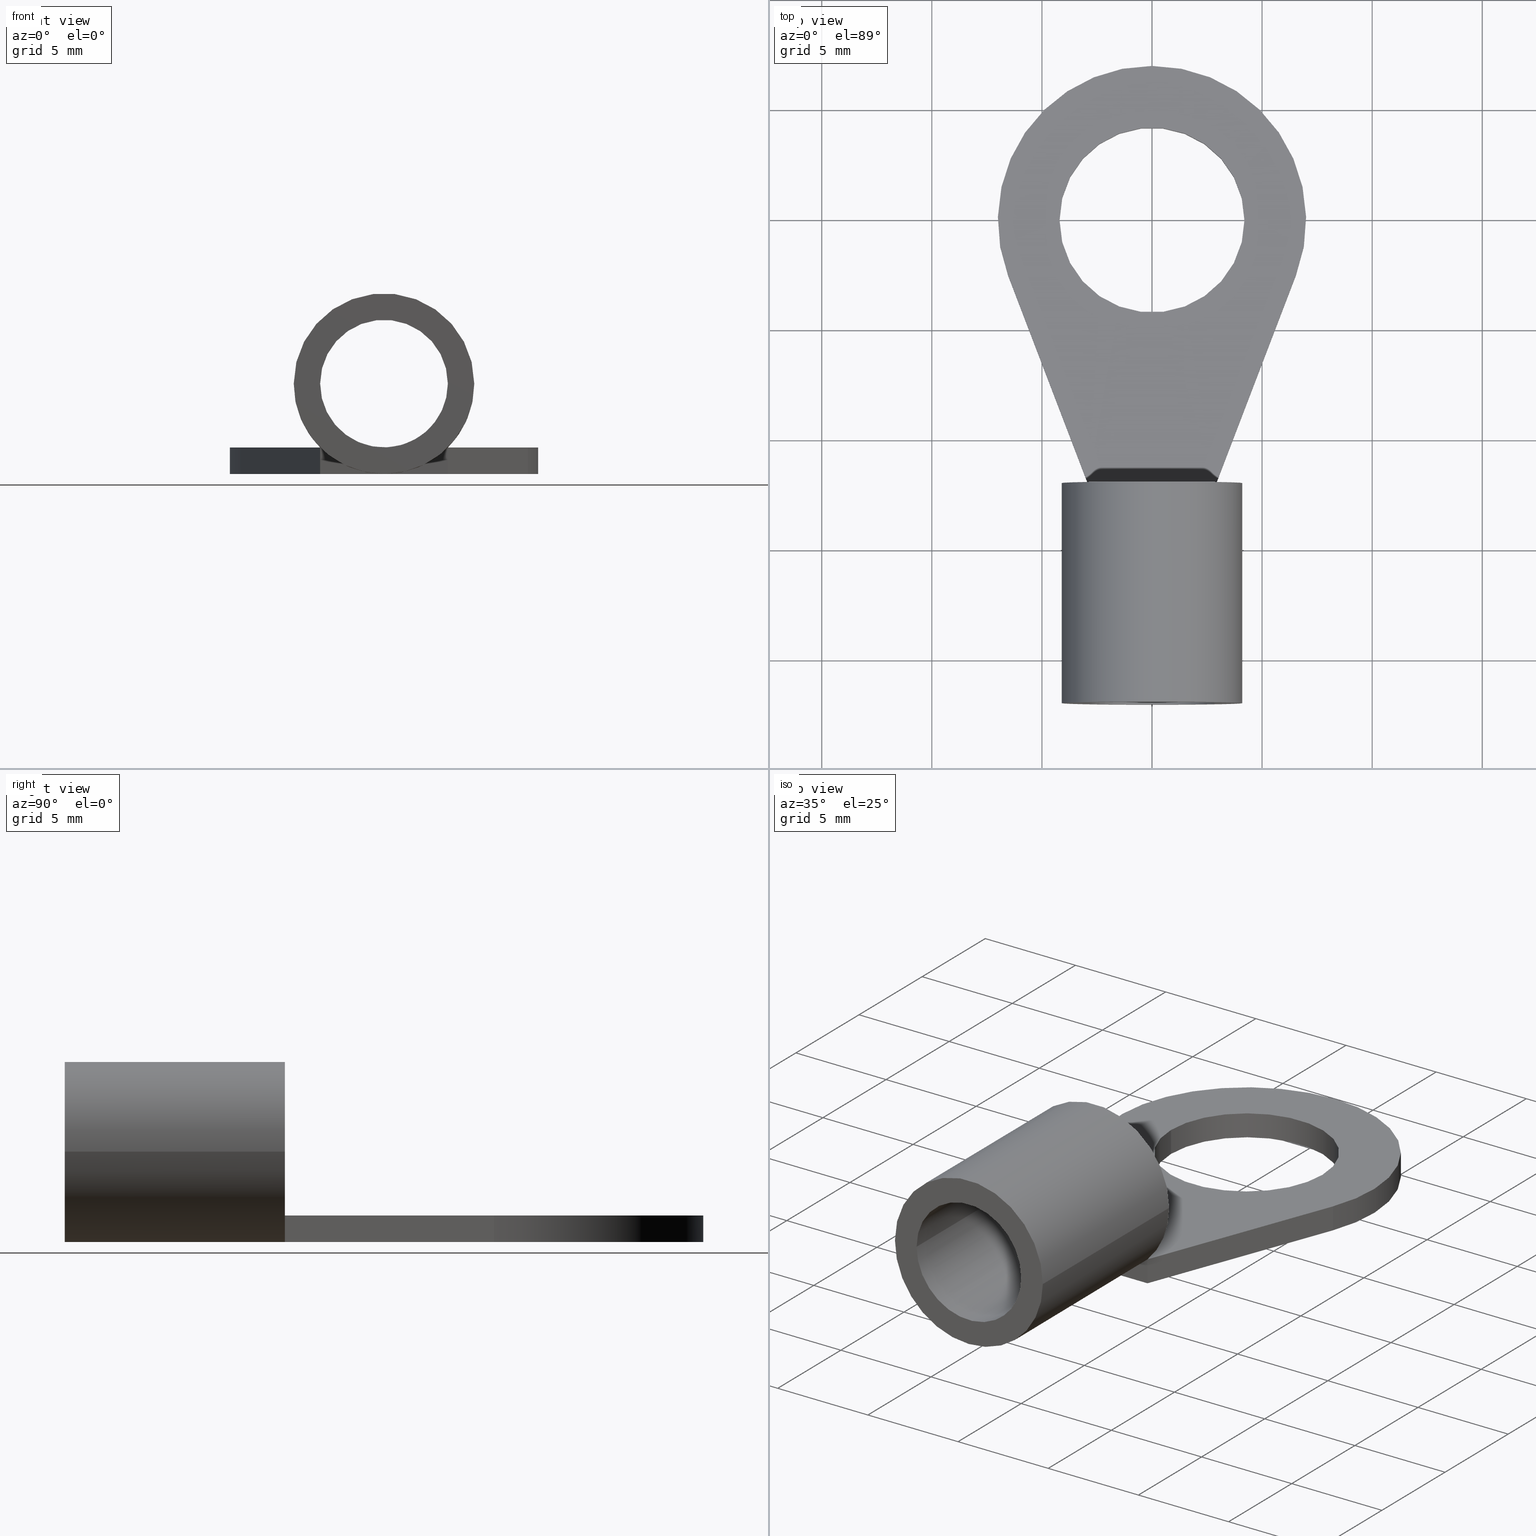
[diagram: canonical four-view strip — front | top / right | iso, engineering-drawing reading convention]
A machine part, canonical four-view strip (front | top / right | iso — engineering-drawing reading convention). The complete STEP part file that produces these views, byte-faithful:
ISO-10303-21;
HEADER;
FILE_DESCRIPTION(('Creo Elements/Direct Modeling STEP Export'),'2;1');
FILE_NAME(
'D:/temp/JobSpoolerServerData/JobServer Files/a0dc7945-faf7-4609-ad4e-91
de7a5026ed/work/output/model.stp','2017-10-18T 7:22:48',(''),(''),
'Creo Elements/Direct Modeling STEP processor for AP214 (Solid Model)',
'Creo Elements/Direct Modeling 18.1I  14-Aug-2016 (C) Parametric Technol
ogy GmbH','');
FILE_SCHEMA(('AUTOMOTIVE_DESIGN { 1 0 10303 214 1 1 1 1 }'));
ENDSEC;
DATA;
#10=CARTESIAN_POINT('',(7.55918008727245,209.799760805683,
127.490621386443));
#20=DIRECTION('',(-5.91634389396356E-9,0.169437138749457,
-0.985540996616781));
#30=DIRECTION('',(0.150207606047662,0.974359518819137,0.167514784935453)
);
#40=AXIS2_PLACEMENT_3D('',#10,#20,#30);
#50=CYLINDRICAL_SURFACE('',#40,4.2);
#60=CARTESIAN_POINT('',(8.19005203267263,213.892070784723,
128.194183483172));
#70=DIRECTION('',(-5.91634389396356E-9,0.169437138749457,
-0.985540996616781));
#80=VECTOR('',#70,1.);
#90=LINE('',#60,#80);
#100=CARTESIAN_POINT('',(8.19005203267263,213.892070784724,
128.194183483171));
#110=VERTEX_POINT('',#100);
#120=CARTESIAN_POINT('',(8.19005202557302,214.095395351223,
127.011534287231));
#130=VERTEX_POINT('',#120);
#140=EDGE_CURVE('',#110,#130,#90,.T.);
#150=ORIENTED_EDGE('',*,*,#140,.F.);
#160=CARTESIAN_POINT('',(7.55918008017284,210.003085372182,
126.307972190502));
#170=DIRECTION('',(-5.91634389396356E-9,0.169437138749457,
-0.985540996616781));
#180=DIRECTION('',(0.150207606047662,0.974359518819137,0.167514784935453
));
#190=AXIS2_PLACEMENT_3D('',#160,#170,#180);
#200=CIRCLE('',#190,4.2);
#210=CARTESIAN_POINT('',(6.92830813477266,205.910775393142,
125.604410093773));
#220=VERTEX_POINT('',#210);
#230=EDGE_CURVE('',#220,#130,#200,.T.);
#240=ORIENTED_EDGE('',*,*,#230,.T.);
#250=CARTESIAN_POINT('',(6.92830814187227,205.707450826643,
126.787059289714));
#260=DIRECTION('',(-5.91634389396356E-9,0.169437138749457,
-0.985540996616781));
#270=VECTOR('',#260,1.);
#280=LINE('',#250,#270);
#290=CARTESIAN_POINT('',(6.92830814187227,205.707450826643,
126.787059289713));
#300=VERTEX_POINT('',#290);
#310=EDGE_CURVE('',#300,#220,#280,.T.);
#320=ORIENTED_EDGE('',*,*,#310,.T.);
#330=CARTESIAN_POINT('',(7.55918008727245,209.799760805683,
127.490621386442));
#340=DIRECTION('',(-5.91634389396356E-9,0.169437138749457,
-0.985540996616781));
#350=DIRECTION('',(0.150207606047662,0.974359518819137,0.167514784935453
));
#360=AXIS2_PLACEMENT_3D('',#330,#340,#350);
#370=CIRCLE('',#360,4.2);
#380=EDGE_CURVE('',#300,#110,#370,.T.);
#390=ORIENTED_EDGE('',*,*,#380,.F.);
#400=EDGE_LOOP('',(#390,#320,#240,#150));
#410=FACE_OUTER_BOUND('',#400,.T.);
#420=ADVANCED_FACE('',(#410),#50,.F.);
#430=COLOUR_RGB('',0.752941250801086,0.752941250801086,0.752941250801086
);
#440=FILL_AREA_STYLE_COLOUR('',#430);
#450=FILL_AREA_STYLE('',(#440));
#460=SURFACE_STYLE_FILL_AREA(#450);
#470=SURFACE_SIDE_STYLE('',(#460));
#480=SURFACE_STYLE_USAGE(.BOTH.,#470);
#490=PRESENTATION_STYLE_ASSIGNMENT((#480));
#500=CARTESIAN_POINT('',(6.67871071034626,209.961204079557,
127.518377199441));
#510=DIRECTION('',(-5.91634389092459E-9,0.169437138749457,
-0.985540996616781));
#520=DIRECTION('',(1.,5.42947599190825E-9,-5.06969170343868E-9));
#530=AXIS2_PLACEMENT_3D('',#500,#510,#520);
#540=PLANE('',#530);
#550=CARTESIAN_POINT('',(-36.9213334627199,0.,91.4212229138226));
#560=DIRECTION('',(0.150207606047678,0.974359518819134,0.167514784935453
));
#570=VECTOR('',#560,1.);
#580=LINE('',#550,#570);
#590=CARTESIAN_POINT('',(-4.74027569543881,208.750547234379,
127.310237543151));
#600=VERTEX_POINT('',#590);
#610=CARTESIAN_POINT('',(-4.30467363790056,211.576189838954,
127.796030419464));
#620=VERTEX_POINT('',#610);
#630=EDGE_CURVE('',#600,#620,#580,.T.);
#640=ORIENTED_EDGE('',*,*,#630,.F.);
#650=CARTESIAN_POINT('',(-3.86907158036227,214.40183244353,
128.281823295776));
#660=VERTEX_POINT('',#650);
#670=EDGE_CURVE('',#620,#660,#580,.T.);
#680=ORIENTED_EDGE('',*,*,#670,.F.);
#690=CARTESIAN_POINT('',(0.,215.234420505019,128.42496428787));
#700=DIRECTION('',(0.976981986719147,0.210237397147532,
0.0361446326159286));
#710=VECTOR('',#700,1.);
#720=LINE('',#690,#710);
#730=CARTESIAN_POINT('',(6.06592736797502,216.539751410261,
128.649380622225));
#740=VERTEX_POINT('',#730);
#750=EDGE_CURVE('',#660,#740,#720,.T.);
#760=ORIENTED_EDGE('',*,*,#750,.F.);
#770=CARTESIAN_POINT('',(7.55918008727245,209.799760805683,
127.490621386442));
#780=DIRECTION('',(-5.91634389571428E-9,0.169437138749457,
-0.985540996616781));
#790=DIRECTION('',(1.,5.42947599304575E-9,-5.06969170810309E-9));
#800=AXIS2_PLACEMENT_3D('',#770,#780,#790);
#810=CIRCLE('',#800,7.);
#820=CARTESIAN_POINT('',(4.10211751548192,203.801003531408,
126.459297218659));
#830=VERTEX_POINT('',#820);
#840=EDGE_CURVE('',#740,#830,#810,.T.);
#850=ORIENTED_EDGE('',*,*,#840,.F.);
#860=CARTESIAN_POINT('',(0.,206.097170353363,126.854061071211));
#870=DIRECTION('',(-0.869537976951975,0.486725269466766,
0.0836792608761059));
#880=VECTOR('',#870,1.);
#890=LINE('',#860,#880);
#900=EDGE_CURVE('',#830,#600,#890,.T.);
#910=ORIENTED_EDGE('',*,*,#900,.F.);
#920=EDGE_LOOP('',(#910,#850,#760,#680,#640));
#930=FACE_OUTER_BOUND('',#920,.T.);
#940=EDGE_CURVE('',#110,#300,#370,.T.);
#950=ORIENTED_EDGE('',*,*,#940,.T.);
#960=ORIENTED_EDGE('',*,*,#380,.T.);
#970=EDGE_LOOP('',(#960,#950));
#980=FACE_BOUND('',#970,.T.);
#990=ADVANCED_FACE('',(#930,#980),#540,.F.);
#1000=COLOUR_RGB('',0.752941250801086,0.752941250801086,
0.752941250801086);
#1010=FILL_AREA_STYLE_COLOUR('',#1000);
#1020=FILL_AREA_STYLE('',(#1010));
#1030=SURFACE_STYLE_FILL_AREA(#1020);
#1040=SURFACE_SIDE_STYLE('',(#1030));
#1050=SURFACE_STYLE_USAGE(.BOTH.,#1040);
#1060=PRESENTATION_STYLE_ASSIGNMENT((#1050));
#1070=CARTESIAN_POINT('',(7.55918008727245,209.799760805683,
127.490621386443));
#1080=DIRECTION('',(-5.91634389396356E-9,0.169437138749457,
-0.985540996616781));
#1090=DIRECTION('',(0.150207606047662,0.974359518819137,
0.167514784935453));
#1100=AXIS2_PLACEMENT_3D('',#1070,#1080,#1090);
#1110=CYLINDRICAL_SURFACE('',#1100,4.2);
#1120=ORIENTED_EDGE('',*,*,#940,.F.);
#1130=ORIENTED_EDGE('',*,*,#310,.F.);
#1140=EDGE_CURVE('',#130,#220,#200,.T.);
#1150=ORIENTED_EDGE('',*,*,#1140,.T.);
#1160=ORIENTED_EDGE('',*,*,#140,.T.);
#1170=EDGE_LOOP('',(#1160,#1150,#1130,#1120));
#1180=FACE_OUTER_BOUND('',#1170,.T.);
#1190=ADVANCED_FACE('',(#1180),#1110,.F.);
#1200=COLOUR_RGB('',0.752941250801086,0.752941250801086,
0.752941250801086);
#1210=FILL_AREA_STYLE_COLOUR('',#1200);
#1220=FILL_AREA_STYLE('',(#1210));
#1230=SURFACE_STYLE_FILL_AREA(#1220);
#1240=SURFACE_SIDE_STYLE('',(#1230));
#1250=SURFACE_STYLE_USAGE(.BOTH.,#1240);
#1260=PRESENTATION_STYLE_ASSIGNMENT((#1250));
#1270=CARTESIAN_POINT('',(-4.30467364263362,211.711739549954,
127.00759762217));
#1280=DIRECTION('',(-0.98865447709775,0.148035752772574,
0.0254507527517702));
#1290=DIRECTION('',(0.150207606047678,0.974359518819134,
0.167514784935453));
#1300=AXIS2_PLACEMENT_3D('',#1270,#1280,#1290);
#1310=PLANE('',#1300);
#1320=CARTESIAN_POINT('',(-4.30467366215757,212.270882107827,
123.755312333335));
#1330=DIRECTION('',(-0.98865447709775,0.148035752772574,
0.0254507527517702));
#1340=DIRECTION('',(0.150207606047678,0.974359518819134,
0.167514784935453));
#1350=AXIS2_PLACEMENT_3D('',#1320,#1330,#1340);
#1360=CIRCLE('',#1350,2.9);
#1370=CARTESIAN_POINT('',(-3.8690716046193,215.096524712402,
124.241105209648));
#1380=VERTEX_POINT('',#1370);
#1390=CARTESIAN_POINT('',(-4.74027571969584,209.445239503251,
123.269519457022));
#1400=VERTEX_POINT('',#1390);
#1410=EDGE_CURVE('',#1380,#1400,#1360,.T.);
#1420=ORIENTED_EDGE('',*,*,#1410,.T.);
#1430=CARTESIAN_POINT('',(-4.30467364500014,211.779514405453,
126.613381223524));
#1440=VERTEX_POINT('',#1430);
#1450=EDGE_CURVE('',#1440,#1380,#1360,.T.);
#1460=ORIENTED_EDGE('',*,*,#1450,.T.);
#1470=CARTESIAN_POINT('',(-36.9631262520451,-0.0677748554997828,
90.1919654993604));
#1480=DIRECTION('',(-0.150207606047678,-0.974359518819134,
-0.167514784935453));
#1490=VECTOR('',#1480,1.);
#1500=LINE('',#1470,#1490);
#1510=CARTESIAN_POINT('',(-3.86907158746191,214.605157010029,
127.099174099836));
#1520=VERTEX_POINT('',#1510);
#1530=EDGE_CURVE('',#1520,#1440,#1500,.T.);
#1540=ORIENTED_EDGE('',*,*,#1530,.T.);
#1550=CARTESIAN_POINT('',(-4.30467366215757,212.270882107827,
123.755312333335));
#1560=DIRECTION('',(-0.98865447709775,0.148035752772574,
0.0254507527517702));
#1570=DIRECTION('',(0.150207606047678,0.974359518819134,
0.167514784935453));
#1580=AXIS2_PLACEMENT_3D('',#1550,#1560,#1570);
#1590=CIRCLE('',#1580,4.1);
#1600=CARTESIAN_POINT('',(-3.68882247736209,216.265756134985,
124.44212295157));
#1610=VERTEX_POINT('',#1600);
#1620=EDGE_CURVE('',#1520,#1610,#1590,.T.);
#1630=ORIENTED_EDGE('',*,*,#1620,.F.);
#1640=CARTESIAN_POINT('',(-4.92052484695305,208.276008080668,
123.068501715099));
#1650=VERTEX_POINT('',#1640);
#1660=EDGE_CURVE('',#1610,#1650,#1590,.T.);
#1670=ORIENTED_EDGE('',*,*,#1660,.F.);
#1680=CARTESIAN_POINT('',(-4.74027570253843,208.953871800878,
126.127588347211));
#1690=VERTEX_POINT('',#1680);
#1700=EDGE_CURVE('',#1650,#1690,#1590,.T.);
#1710=ORIENTED_EDGE('',*,*,#1700,.F.);
#1720=EDGE_CURVE('',#1440,#1690,#1500,.T.);
#1730=ORIENTED_EDGE('',*,*,#1720,.T.);
#1740=EDGE_CURVE('',#1400,#1440,#1360,.T.);
#1750=ORIENTED_EDGE('',*,*,#1740,.T.);
#1760=EDGE_LOOP('',(#1750,#1730,#1710,#1670,#1630,#1540,#1460,#1420));
#1770=FACE_OUTER_BOUND('',#1760,.T.);
#1780=ADVANCED_FACE('',(#1770),#1310,.F.);
#1790=COLOUR_RGB('',0.752941250801086,0.752941250801086,
0.752941250801086);
#1800=FILL_AREA_STYLE_COLOUR('',#1790);
#1810=FILL_AREA_STYLE('',(#1800));
#1820=SURFACE_STYLE_FILL_AREA(#1810);
#1830=SURFACE_SIDE_STYLE('',(#1820));
#1840=SURFACE_STYLE_USAGE(.BOTH.,#1830);
#1850=PRESENTATION_STYLE_ASSIGNMENT((#1840));
#1860=CARTESIAN_POINT('',(7.5591800778063,210.070860227682,
125.913755791856));
#1870=DIRECTION('',(-5.91634389571428E-9,0.169437138749457,
-0.985540996616781));
#1880=DIRECTION('',(1.,5.42947599197708E-9,-5.06969170188712E-9));
#1890=AXIS2_PLACEMENT_3D('',#1860,#1870,#1880);
#1900=CYLINDRICAL_SURFACE('',#1890,7.);
#1910=CARTESIAN_POINT('',(4.10211750601575,204.072102953407,
124.882431624072));
#1920=DIRECTION('',(5.91634389571428E-9,-0.169437138749457,
0.985540996616781));
#1930=VECTOR('',#1920,1.);
#1940=LINE('',#1910,#1930);
#1950=CARTESIAN_POINT('',(4.10211750838229,204.004328097907,
125.276648022719));
#1960=VERTEX_POINT('',#1950);
#1970=EDGE_CURVE('',#1960,#830,#1940,.T.);
#1980=ORIENTED_EDGE('',*,*,#1970,.F.);
#1990=ORIENTED_EDGE('',*,*,#840,.T.);
#2000=CARTESIAN_POINT('',(6.06592735850887,216.81085083226,
127.072515027639));
#2010=DIRECTION('',(5.91634389571428E-9,-0.169437138749457,
0.985540996616781));
#2020=VECTOR('',#2010,1.);
#2030=LINE('',#2000,#2020);
#2040=CARTESIAN_POINT('',(6.06592736087541,216.74307597676,
127.466731426285));
#2050=VERTEX_POINT('',#2040);
#2060=EDGE_CURVE('',#2050,#740,#2030,.T.);
#2070=ORIENTED_EDGE('',*,*,#2060,.T.);
#2080=CARTESIAN_POINT('',(7.55918008017284,210.003085372182,
126.307972190502));
#2090=DIRECTION('',(-5.91634389571428E-9,0.169437138749457,
-0.985540996616781));
#2100=DIRECTION('',(1.,5.42947599304575E-9,-5.06969170810309E-9));
#2110=AXIS2_PLACEMENT_3D('',#2080,#2090,#2100);
#2120=CIRCLE('',#2110,7.);
#2130=EDGE_CURVE('',#2050,#1960,#2120,.T.);
#2140=ORIENTED_EDGE('',*,*,#2130,.F.);
#2150=EDGE_LOOP('',(#2140,#2070,#1990,#1980));
#2160=FACE_OUTER_BOUND('',#2150,.T.);
#2170=ADVANCED_FACE('',(#2160),#1900,.T.);
#2180=COLOUR_RGB('',0.752941250801086,0.752941250801086,
0.752941250801086);
#2190=FILL_AREA_STYLE_COLOUR('',#2180);
#2200=FILL_AREA_STYLE('',(#2190));
#2210=SURFACE_STYLE_FILL_AREA(#2200);
#2220=SURFACE_SIDE_STYLE('',(#2210));
#2230=SURFACE_STYLE_USAGE(.BOTH.,#2220);
#2240=PRESENTATION_STYLE_ASSIGNMENT((#2230));
#2250=CARTESIAN_POINT('',(-3.86907158982843,214.672931865529,
126.70495770119));
#2260=DIRECTION('',(-0.21332181704249,0.962855800653986,
0.165537033683289));
#2270=DIRECTION('',(-0.976981986719146,-0.210237397147532,
-0.0361446326159286));
#2280=AXIS2_PLACEMENT_3D('',#2250,#2260,#2270);
#2290=PLANE('',#2280);
#2300=ORIENTED_EDGE('',*,*,#2060,.F.);
#2310=ORIENTED_EDGE('',*,*,#750,.T.);
#2320=CARTESIAN_POINT('',(-3.86907158982843,214.672931865529,
126.70495770119));
#2330=DIRECTION('',(5.91634389571428E-9,-0.169437138749457,
0.985540996616781));
#2340=VECTOR('',#2330,1.);
#2350=LINE('',#2320,#2340);
#2360=EDGE_CURVE('',#1520,#660,#2350,.T.);
#2370=ORIENTED_EDGE('',*,*,#2360,.T.);
#2380=CARTESIAN_POINT('',(0.,215.437745073046,127.242315092193));
#2390=DIRECTION('',(0.976981986719146,0.210237397147532,
0.0361446326159286));
#2400=VECTOR('',#2390,1.);
#2410=LINE('',#2380,#2400);
#2420=EDGE_CURVE('',#1520,#2050,#2410,.T.);
#2430=ORIENTED_EDGE('',*,*,#2420,.F.);
#2440=EDGE_LOOP('',(#2430,#2370,#2310,#2300));
#2450=FACE_OUTER_BOUND('',#2440,.T.);
#2460=ADVANCED_FACE('',(#2450),#2290,.T.);
#2470=COLOUR_RGB('',0.752941250801086,0.752941250801086,
0.752941250801086);
#2480=FILL_AREA_STYLE_COLOUR('',#2470);
#2490=FILL_AREA_STYLE('',(#2480));
#2500=SURFACE_STYLE_FILL_AREA(#2490);
#2510=SURFACE_SIDE_STYLE('',(#2500));
#2520=SURFACE_STYLE_USAGE(.BOTH.,#2510);
#2530=PRESENTATION_STYLE_ASSIGNMENT((#2520));
#2540=CARTESIAN_POINT('',(4.10211750601575,204.072102953407,
124.882431624072));
#2550=DIRECTION('',(-0.493866081684364,-0.856965324896464,
-0.1473320239691));
#2560=DIRECTION('',(0.869537976951975,-0.486725269466766,
-0.0836792608761058));
#2570=AXIS2_PLACEMENT_3D('',#2540,#2550,#2560);
#2580=PLANE('',#2570);
#2590=CARTESIAN_POINT('',(-4.74027570490497,209.021646656378,
125.733371948564));
#2600=DIRECTION('',(5.91634389571428E-9,-0.169437138749457,
0.985540996616781));
#2610=VECTOR('',#2600,1.);
#2620=LINE('',#2590,#2610);
#2630=EDGE_CURVE('',#1690,#600,#2620,.T.);
#2640=ORIENTED_EDGE('',*,*,#2630,.F.);
#2650=ORIENTED_EDGE('',*,*,#900,.T.);
#2660=ORIENTED_EDGE('',*,*,#1970,.T.);
#2670=CARTESIAN_POINT('',(0.,206.300494915889,125.671411874588));
#2680=DIRECTION('',(-0.869537976951975,0.486725269466766,
0.0836792608761059));
#2690=VECTOR('',#2680,1.);
#2700=LINE('',#2670,#2690);
#2710=EDGE_CURVE('',#1960,#1690,#2700,.T.);
#2720=ORIENTED_EDGE('',*,*,#2710,.F.);
#2730=EDGE_LOOP('',(#2720,#2660,#2650,#2640));
#2740=FACE_OUTER_BOUND('',#2730,.T.);
#2750=ADVANCED_FACE('',(#2740),#2580,.T.);
#2760=COLOUR_RGB('',0.752941250801086,0.752941250801086,
0.752941250801086);
#2770=FILL_AREA_STYLE_COLOUR('',#2760);
#2780=FILL_AREA_STYLE('',(#2770));
#2790=SURFACE_STYLE_FILL_AREA(#2780);
#2800=SURFACE_SIDE_STYLE('',(#2790));
#2810=SURFACE_STYLE_USAGE(.BOTH.,#2800);
#2820=PRESENTATION_STYLE_ASSIGNMENT((#2810));
#2830=CARTESIAN_POINT('',(-4.74027570490497,209.021646656378,
125.733371948564));
#2840=DIRECTION('',(-0.98865447709775,0.148035752772574,
0.0254507527517702));
#2850=DIRECTION('',(-0.150207606047678,-0.974359518819134,
-0.167514784935453));
#2860=AXIS2_PLACEMENT_3D('',#2830,#2840,#2850);
#2870=PLANE('',#2860);
#2880=ORIENTED_EDGE('',*,*,#630,.T.);
#2890=ORIENTED_EDGE('',*,*,#2630,.T.);
#2900=CARTESIAN_POINT('',(-4.30467366215756,212.270882107827,
123.755312333335));
#2910=DIRECTION('',(-0.98865447709775,0.148035752772574,
0.0254507527517702));
#2920=DIRECTION('',(0.150207606047678,0.974359518819134,
0.167514784935453));
#2930=AXIS2_PLACEMENT_3D('',#2900,#2910,#2920);
#2940=CIRCLE('',#2930,4.1);
#2950=EDGE_CURVE('',#1690,#620,#2940,.T.);
#2960=ORIENTED_EDGE('',*,*,#2950,.F.);
#2970=EDGE_LOOP('',(#2960,#2890,#2880));
#2980=FACE_OUTER_BOUND('',#2970,.T.);
#2990=ADVANCED_FACE('',(#2980),#2870,.T.);
#3000=COLOUR_RGB('',0.752941250801086,0.752941250801086,
0.752941250801086);
#3010=FILL_AREA_STYLE_COLOUR('',#3000);
#3020=FILL_AREA_STYLE('',(#3010));
#3030=SURFACE_STYLE_FILL_AREA(#3020);
#3040=SURFACE_SIDE_STYLE('',(#3030));
#3050=SURFACE_STYLE_USAGE(.BOTH.,#3040);
#3060=PRESENTATION_STYLE_ASSIGNMENT((#3050));
#3070=CARTESIAN_POINT('',(-4.30467366215757,212.270882107827,
123.755312333335));
#3080=DIRECTION('',(-0.98865447709775,0.148035752772574,
0.0254507527517702));
#3090=DIRECTION('',(0.150207606047678,0.974359518819134,
0.167514784935453));
#3100=AXIS2_PLACEMENT_3D('',#3070,#3080,#3090);
#3110=CYLINDRICAL_SURFACE('',#3100,2.9);
#3120=CARTESIAN_POINT('',(-4.74027571969584,209.445239503251,
123.269519457022));
#3130=DIRECTION('',(-0.98865447709775,0.148035752772574,
0.0254507527517702));
#3140=VECTOR('',#3130,1.);
#3150=LINE('',#3120,#3140);
#3160=CARTESIAN_POINT('',(-14.6268204906733,210.925597030977,
123.52402698454));
#3170=VERTEX_POINT('',#3160);
#3180=EDGE_CURVE('',#1400,#3170,#3150,.T.);
#3190=ORIENTED_EDGE('',*,*,#3180,.T.);
#3200=ORIENTED_EDGE('',*,*,#1740,.F.);
#3210=ORIENTED_EDGE('',*,*,#1450,.F.);
#3220=CARTESIAN_POINT('',(-3.8690716046193,215.096524712402,
124.241105209648));
#3230=DIRECTION('',(-0.98865447709775,0.148035752772574,
0.0254507527517702));
#3240=VECTOR('',#3230,1.);
#3250=LINE('',#3220,#3240);
#3260=CARTESIAN_POINT('',(-13.7556163755968,216.576882240128,
124.495612737165));
#3270=VERTEX_POINT('',#3260);
#3280=EDGE_CURVE('',#1380,#3270,#3250,.T.);
#3290=ORIENTED_EDGE('',*,*,#3280,.F.);
#3300=CARTESIAN_POINT('',(-14.1912184331351,213.751239635553,
124.009819860852));
#3310=DIRECTION('',(-0.98865447709775,0.148035752772574,
0.0254507527517702));
#3320=DIRECTION('',(0.150207606047678,0.974359518819134,
0.167514784935453));
#3330=AXIS2_PLACEMENT_3D('',#3300,#3310,#3320);
#3340=CIRCLE('',#3330,2.9);
#3350=CARTESIAN_POINT('',(-13.9704592241632,214.759656976957,
126.719867800873));
#3360=VERTEX_POINT('',#3350);
#3370=EDGE_CURVE('',#3360,#3270,#3340,.T.);
#3380=ORIENTED_EDGE('',*,*,#3370,.T.);
#3390=EDGE_CURVE('',#3170,#3360,#3340,.T.);
#3400=ORIENTED_EDGE('',*,*,#3390,.T.);
#3410=EDGE_LOOP('',(#3400,#3380,#3290,#3210,#3200,#3190));
#3420=FACE_OUTER_BOUND('',#3410,.T.);
#3430=ADVANCED_FACE('',(#3420),#3110,.F.);
#3440=COLOUR_RGB('',0.752941250801086,0.752941250801086,
0.752941250801086);
#3450=FILL_AREA_STYLE_COLOUR('',#3440);
#3460=FILL_AREA_STYLE('',(#3450));
#3470=SURFACE_STYLE_FILL_AREA(#3460);
#3480=SURFACE_SIDE_STYLE('',(#3470));
#3490=SURFACE_STYLE_USAGE(.BOTH.,#3480);
#3500=PRESENTATION_STYLE_ASSIGNMENT((#3490));
#3510=ORIENTED_EDGE('',*,*,#2360,.F.);
#3520=ORIENTED_EDGE('',*,*,#670,.T.);
#3530=EDGE_CURVE('',#620,#1520,#2940,.T.);
#3540=ORIENTED_EDGE('',*,*,#3530,.F.);
#3550=EDGE_LOOP('',(#3540,#3520,#3510));
#3560=FACE_OUTER_BOUND('',#3550,.T.);
#3570=ADVANCED_FACE('',(#3560),#2870,.T.);
#3580=COLOUR_RGB('',0.752941250801086,0.752941250801086,
0.752941250801086);
#3590=FILL_AREA_STYLE_COLOUR('',#3580);
#3600=FILL_AREA_STYLE('',(#3590));
#3610=SURFACE_STYLE_FILL_AREA(#3600);
#3620=SURFACE_SIDE_STYLE('',(#3610));
#3630=SURFACE_STYLE_USAGE(.BOTH.,#3620);
#3640=PRESENTATION_STYLE_ASSIGNMENT((#3630));
#3650=CARTESIAN_POINT('',(-4.30467366215757,212.270882107827,
123.755312333335));
#3660=DIRECTION('',(-0.98865447709775,0.148035752772574,
0.0254507527517702));
#3670=DIRECTION('',(0.150207606047678,0.974359518819134,
0.167514784935453));
#3680=AXIS2_PLACEMENT_3D('',#3650,#3660,#3670);
#3690=CYLINDRICAL_SURFACE('',#3680,4.1);
#3700=CARTESIAN_POINT('',(-14.1912184331351,213.751239635553,
124.009819860852));
#3710=DIRECTION('',(-0.98865447709775,0.148035752772574,
0.0254507527517702));
#3720=DIRECTION('',(0.150207606047678,0.974359518819134,
0.167514784935453));
#3730=AXIS2_PLACEMENT_3D('',#3700,#3710,#3720);
#3740=CIRCLE('',#3730,4.1);
#3750=CARTESIAN_POINT('',(-14.1912184088781,213.05654736668,
128.050537946981));
#3760=VERTEX_POINT('',#3750);
#3770=CARTESIAN_POINT('',(-13.5753672483396,217.746113662711,
124.696630479088));
#3780=VERTEX_POINT('',#3770);
#3790=EDGE_CURVE('',#3760,#3780,#3740,.T.);
#3800=ORIENTED_EDGE('',*,*,#3790,.F.);
#3810=CARTESIAN_POINT('',(-3.68882247736209,216.265756134985,
124.44212295157));
#3820=DIRECTION('',(-0.98865447709775,0.148035752772574,
0.0254507527517702));
#3830=VECTOR('',#3820,1.);
#3840=LINE('',#3810,#3830);
#3850=EDGE_CURVE('',#1610,#3780,#3840,.T.);
#3860=ORIENTED_EDGE('',*,*,#3850,.T.);
#3870=ORIENTED_EDGE('',*,*,#1620,.T.);
#3880=ORIENTED_EDGE('',*,*,#3530,.T.);
#3890=ORIENTED_EDGE('',*,*,#2950,.T.);
#3900=ORIENTED_EDGE('',*,*,#1700,.T.);
#3910=CARTESIAN_POINT('',(-4.92052484695305,208.276008080668,
123.068501715099));
#3920=DIRECTION('',(-0.98865447709775,0.148035752772574,
0.0254507527517702));
#3930=VECTOR('',#3920,1.);
#3940=LINE('',#3910,#3930);
#3950=CARTESIAN_POINT('',(-14.8070696179306,209.756365608394,
123.323009242617));
#3960=VERTEX_POINT('',#3950);
#3970=EDGE_CURVE('',#1650,#3960,#3940,.T.);
#3980=ORIENTED_EDGE('',*,*,#3970,.F.);
#3990=EDGE_CURVE('',#3960,#3760,#3740,.T.);
#4000=ORIENTED_EDGE('',*,*,#3990,.F.);
#4010=EDGE_LOOP('',(#4000,#3980,#3900,#3890,#3880,#3870,#3860,#3800));
#4020=FACE_OUTER_BOUND('',#4010,.T.);
#4030=ADVANCED_FACE('',(#4020),#3690,.T.);
#4040=COLOUR_RGB('',0.752941250801086,0.752941250801086,
0.752941250801086);
#4050=FILL_AREA_STYLE_COLOUR('',#4040);
#4060=FILL_AREA_STYLE('',(#4050));
#4070=SURFACE_STYLE_FILL_AREA(#4060);
#4080=SURFACE_SIDE_STYLE('',(#4070));
#4090=SURFACE_STYLE_USAGE(.BOTH.,#4080);
#4100=PRESENTATION_STYLE_ASSIGNMENT((#4090));
#4110=CARTESIAN_POINT('',(-14.1912184136111,213.192097077679,
127.262105149688));
#4120=DIRECTION('',(-0.98865447709775,0.148035752772574,
0.0254507527517702));
#4130=DIRECTION('',(0.150207606047678,0.974359518819134,
0.167514784935453));
#4140=AXIS2_PLACEMENT_3D('',#4110,#4120,#4130);
#4150=PLANE('',#4140);
#4160=EDGE_CURVE('',#3780,#3960,#3740,.T.);
#4170=ORIENTED_EDGE('',*,*,#4160,.T.);
#4180=ORIENTED_EDGE('',*,*,#3790,.T.);
#4190=ORIENTED_EDGE('',*,*,#3990,.T.);
#4200=EDGE_LOOP('',(#4190,#4180,#4170));
#4210=FACE_OUTER_BOUND('',#4200,.T.);
#4220=ORIENTED_EDGE('',*,*,#3370,.F.);
#4230=EDGE_CURVE('',#3270,#3170,#3340,.T.);
#4240=ORIENTED_EDGE('',*,*,#4230,.F.);
#4250=ORIENTED_EDGE('',*,*,#3390,.F.);
#4260=EDGE_LOOP('',(#4250,#4240,#4220));
#4270=FACE_BOUND('',#4260,.T.);
#4280=ADVANCED_FACE('',(#4210,#4270),#4150,.T.);
#4290=COLOUR_RGB('',0.752941250801086,0.752941250801086,
0.752941250801086);
#4300=FILL_AREA_STYLE_COLOUR('',#4290);
#4310=FILL_AREA_STYLE('',(#4300));
#4320=SURFACE_STYLE_FILL_AREA(#4310);
#4330=SURFACE_SIDE_STYLE('',(#4320));
#4340=SURFACE_STYLE_USAGE(.BOTH.,#4330);
#4350=PRESENTATION_STYLE_ASSIGNMENT((#4340));
#4360=CARTESIAN_POINT('',(-4.30467366215757,212.270882107827,
123.755312333335));
#4370=DIRECTION('',(-0.98865447709775,0.148035752772574,
0.0254507527517702));
#4380=DIRECTION('',(0.150207606047678,0.974359518819134,
0.167514784935453));
#4390=AXIS2_PLACEMENT_3D('',#4360,#4370,#4380);
#4400=CYLINDRICAL_SURFACE('',#4390,2.9);
#4410=ORIENTED_EDGE('',*,*,#4230,.T.);
#4420=ORIENTED_EDGE('',*,*,#3280,.T.);
#4430=ORIENTED_EDGE('',*,*,#1410,.F.);
#4440=ORIENTED_EDGE('',*,*,#3180,.F.);
#4450=EDGE_LOOP('',(#4440,#4430,#4420,#4410));
#4460=FACE_OUTER_BOUND('',#4450,.T.);
#4470=ADVANCED_FACE('',(#4460),#4400,.F.);
#4480=COLOUR_RGB('',0.752941250801086,0.752941250801086,
0.752941250801086);
#4490=FILL_AREA_STYLE_COLOUR('',#4480);
#4500=FILL_AREA_STYLE('',(#4490));
#4510=SURFACE_STYLE_FILL_AREA(#4500);
#4520=SURFACE_SIDE_STYLE('',(#4510));
#4530=SURFACE_STYLE_USAGE(.BOTH.,#4520);
#4540=PRESENTATION_STYLE_ASSIGNMENT((#4530));
#4550=CARTESIAN_POINT('',(-4.30467366215757,212.270882107827,
123.755312333335));
#4560=DIRECTION('',(-0.98865447709775,0.148035752772574,
0.0254507527517702));
#4570=DIRECTION('',(0.150207606047678,0.974359518819134,
0.167514784935453));
#4580=AXIS2_PLACEMENT_3D('',#4550,#4560,#4570);
#4590=CYLINDRICAL_SURFACE('',#4580,4.1);
#4600=ORIENTED_EDGE('',*,*,#1660,.T.);
#4610=ORIENTED_EDGE('',*,*,#3850,.F.);
#4620=ORIENTED_EDGE('',*,*,#4160,.F.);
#4630=ORIENTED_EDGE('',*,*,#3970,.T.);
#4640=EDGE_LOOP('',(#4630,#4620,#4610,#4600));
#4650=FACE_OUTER_BOUND('',#4640,.T.);
#4660=ADVANCED_FACE('',(#4650),#4590,.T.);
#4670=COLOUR_RGB('',0.752941250801086,0.752941250801086,
0.752941250801086);
#4680=FILL_AREA_STYLE_COLOUR('',#4670);
#4690=FILL_AREA_STYLE('',(#4680));
#4700=SURFACE_STYLE_FILL_AREA(#4690);
#4710=SURFACE_SIDE_STYLE('',(#4700));
#4720=SURFACE_STYLE_USAGE(.BOTH.,#4710);
#4730=PRESENTATION_STYLE_ASSIGNMENT((#4720));
#4740=CARTESIAN_POINT('',(7.72299772201758,212.279594310728,
126.699356375675));
#4750=DIRECTION('',(5.91634389036865E-9,-0.169437138749457,
0.985540996616781));
#4760=DIRECTION('',(1.,5.42947597823552E-9,-5.06969170522524E-9));
#4770=AXIS2_PLACEMENT_3D('',#4740,#4750,#4760);
#4780=PLANE('',#4770);
#4790=ORIENTED_EDGE('',*,*,#2420,.T.);
#4800=ORIENTED_EDGE('',*,*,#1530,.F.);
#4810=ORIENTED_EDGE('',*,*,#1720,.F.);
#4820=ORIENTED_EDGE('',*,*,#2710,.T.);
#4830=ORIENTED_EDGE('',*,*,#2130,.T.);
#4840=EDGE_LOOP('',(#4830,#4820,#4810,#4800,#4790));
#4850=FACE_OUTER_BOUND('',#4840,.T.);
#4860=ORIENTED_EDGE('',*,*,#1140,.F.);
#4870=ORIENTED_EDGE('',*,*,#230,.F.);
#4880=EDGE_LOOP('',(#4870,#4860));
#4890=FACE_BOUND('',#4880,.T.);
#4900=ADVANCED_FACE('',(#4850,#4890),#4780,.F.);
#4910=COLOUR_RGB('',0.752941250801086,0.752941250801086,
0.752941250801086);
#4920=FILL_AREA_STYLE_COLOUR('',#4910);
#4930=FILL_AREA_STYLE('',(#4920));
#4940=SURFACE_STYLE_FILL_AREA(#4930);
#4950=SURFACE_SIDE_STYLE('',(#4940));
#4960=SURFACE_STYLE_USAGE(.BOTH.,#4950);
#4970=PRESENTATION_STYLE_ASSIGNMENT((#4960));
#4980=CLOSED_SHELL('',(#1780,#2170,#2460,#2750,#2990,#3430,#3570,#4030,
#4280,#4470,#4660,#4900,#420,#990,#1190));
#4990=MANIFOLD_SOLID_BREP('',#4980);
#5000=CARTESIAN_POINT('',(0.,0.,0.));
#5010=DIRECTION('',(0.,0.,1.));
#5020=DIRECTION('',(1.,0.,0.));
#5030=AXIS2_PLACEMENT_3D('',#5000,#5010,#5020);
#5040=APPLICATION_CONTEXT(' ');
#5050=APPLICATION_PROTOCOL_DEFINITION(' ','automotive_design',1998,#5040
);
#5060=PRODUCT_CONTEXT('',#5040,'mechanical');
#5070=PRODUCT_DEFINITION_CONTEXT('part definition',#5040,'design');
#5080=PRODUCT('C_RC_16_M8_DIN-select','C_RC_16_M8_DIN-select','',(#5060)
);
#5090=PRODUCT_RELATED_PRODUCT_CATEGORY('part',' ',(#5080));
#5100=PRODUCT_DEFINITION_FORMATION_WITH_SPECIFIED_SOURCE('','',#5080,
.BOUGHT.);
#5110=PRODUCT_DEFINITION('',' ',#5100,#5070);
#5120=PRODUCT_DEFINITION_SHAPE('','',#5110);
#5130=DIMENSIONAL_EXPONENTS(1.,0.,0.,0.,0.,0.,0.);
#5140=DIMENSIONAL_EXPONENTS(0.,0.,0.,0.,0.,0.,0.);
#5150=DIMENSIONAL_EXPONENTS(0.,0.,0.,0.,0.,0.,0.);
#5160=(LENGTH_UNIT() NAMED_UNIT(*) SI_UNIT(.MILLI.,.METRE.));
#5170=(NAMED_UNIT(*) PLANE_ANGLE_UNIT() SI_UNIT($,.RADIAN.));
#5180=(NAMED_UNIT(*) SI_UNIT($,.STERADIAN.) SOLID_ANGLE_UNIT());
#5190=(GEOMETRIC_REPRESENTATION_CONTEXT(3) 
GLOBAL_UNCERTAINTY_ASSIGNED_CONTEXT((#5200)) 
GLOBAL_UNIT_ASSIGNED_CONTEXT((#5160,#5170,#5180)) REPRESENTATION_CONTEXT
('',''));
#5200=UNCERTAINTY_MEASURE_WITH_UNIT(LENGTH_MEASURE(0.0024),#5160,
'distance_accuracy_value','maximum gap value');
#5210=ADVANCED_BREP_SHAPE_REPRESENTATION('',(#5030,#4990),#5190);
#5220=SHAPE_DEFINITION_REPRESENTATION(#5120,#5210);
#5230=COLOUR_RGB('',0.752941250801086,0.752941250801086,
0.752941250801086);
#5240=FILL_AREA_STYLE_COLOUR('',#5230);
#5250=FILL_AREA_STYLE('',(#5240));
#5260=SURFACE_STYLE_FILL_AREA(#5250);
#5270=SURFACE_SIDE_STYLE('',(#5260));
#5280=SURFACE_STYLE_USAGE(.BOTH.,#5270);
#5290=PRESENTATION_STYLE_ASSIGNMENT((#5280));
#5300=STYLED_ITEM('',(#5290),#4990);
#5310=OVER_RIDING_STYLED_ITEM('',(#490),#420,#5300);
#5320=OVER_RIDING_STYLED_ITEM('',(#1060),#990,#5300);
#5330=OVER_RIDING_STYLED_ITEM('',(#1260),#1190,#5300);
#5340=OVER_RIDING_STYLED_ITEM('',(#1850),#1780,#5300);
#5350=OVER_RIDING_STYLED_ITEM('',(#2240),#2170,#5300);
#5360=OVER_RIDING_STYLED_ITEM('',(#2530),#2460,#5300);
#5370=OVER_RIDING_STYLED_ITEM('',(#2820),#2750,#5300);
#5380=OVER_RIDING_STYLED_ITEM('',(#3060),#2990,#5300);
#5390=OVER_RIDING_STYLED_ITEM('',(#3500),#3430,#5300);
#5400=OVER_RIDING_STYLED_ITEM('',(#3640),#3570,#5300);
#5410=OVER_RIDING_STYLED_ITEM('',(#4100),#4030,#5300);
#5420=OVER_RIDING_STYLED_ITEM('',(#4350),#4280,#5300);
#5430=OVER_RIDING_STYLED_ITEM('',(#4540),#4470,#5300);
#5440=OVER_RIDING_STYLED_ITEM('',(#4730),#4660,#5300);
#5450=OVER_RIDING_STYLED_ITEM('',(#4970),#4900,#5300);
#5460=DRAUGHTING_MODEL('',(#5300,#5310,#5320,#5330,#5340,#5350,#5360,
#5370,#5380,#5390,#5400,#5410,#5420,#5430,#5440,#5450),#5190);
#5470=CARTESIAN_POINT('',(-226.912404354425,26.8291805689774,
90.0993629239746));
#5480=DIRECTION('',(0.167514784935454,-0.0254507527517675,
-0.985540996616781));
#5490=DIRECTION('',(0.150207606047662,0.988654477097753,
-5.91634382457462E-9));
#5500=AXIS2_PLACEMENT_3D('',#5470,#5480,#5490);
#5510=ITEM_DEFINED_TRANSFORMATION('C_RC_16_M8_DIN-select','',#5030,#5500
);
#5520=APPLICATION_CONTEXT(' ');
#5530=APPLICATION_PROTOCOL_DEFINITION(' ','automotive_design',1998,#5520
);
#5540=PRODUCT_CONTEXT('',#5520,'mechanical');
#5550=PRODUCT_DEFINITION_CONTEXT('part definition',#5520,'design');
#5560=PRODUCT('C_RC_16_M8_DIN-select','C_RC_16_M8_DIN-select','',(#5540)
);
#5570=PRODUCT_RELATED_PRODUCT_CATEGORY('part',' ',(#5560));
#5580=PRODUCT_DEFINITION_FORMATION_WITH_SPECIFIED_SOURCE('','',#5560,
.BOUGHT.);
#5590=PRODUCT_DEFINITION('',' ',#5580,#5550);
#5600=PRODUCT_DEFINITION_SHAPE('','',#5590);
#5610=DIMENSIONAL_EXPONENTS(1.,0.,0.,0.,0.,0.,0.);
#5620=DIMENSIONAL_EXPONENTS(0.,0.,0.,0.,0.,0.,0.);
#5630=DIMENSIONAL_EXPONENTS(0.,0.,0.,0.,0.,0.,0.);
#5640=(LENGTH_UNIT() NAMED_UNIT(*) SI_UNIT(.MILLI.,.METRE.));
#5650=(NAMED_UNIT(*) PLANE_ANGLE_UNIT() SI_UNIT($,.RADIAN.));
#5660=(NAMED_UNIT(*) SI_UNIT($,.STERADIAN.) SOLID_ANGLE_UNIT());
#5670=(GEOMETRIC_REPRESENTATION_CONTEXT(3) 
GLOBAL_UNCERTAINTY_ASSIGNED_CONTEXT((#5680)) 
GLOBAL_UNIT_ASSIGNED_CONTEXT((#5640,#5650,#5660)) REPRESENTATION_CONTEXT
('',''));
#5680=UNCERTAINTY_MEASURE_WITH_UNIT(LENGTH_MEASURE(0.0024),#5640,
'distance_accuracy_value','maximum gap value');
#5690=SHAPE_REPRESENTATION('',(#5030,#5500),#5670);
#5700=SHAPE_DEFINITION_REPRESENTATION(#5600,#5690);
#5710=(REPRESENTATION_RELATIONSHIP('','',#5210,#5690) 
REPRESENTATION_RELATIONSHIP_WITH_TRANSFORMATION(#5510) 
SHAPE_REPRESENTATION_RELATIONSHIP());
#5720=NEXT_ASSEMBLY_USAGE_OCCURRENCE('1','','C_RC_16_M8_DIN-select',
#5590,#5110,'');
#5730=PRODUCT_DEFINITION_SHAPE('','',#5720);
#5740=CONTEXT_DEPENDENT_SHAPE_REPRESENTATION(#5710,#5730);
ENDSEC;
END-ISO-10303-21;
